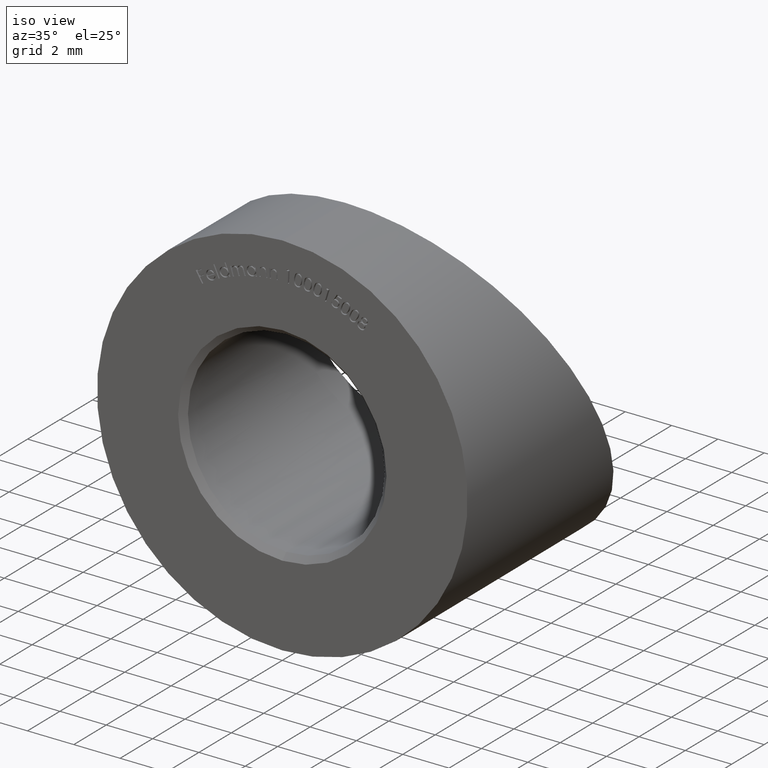
[diagram: clean part render]
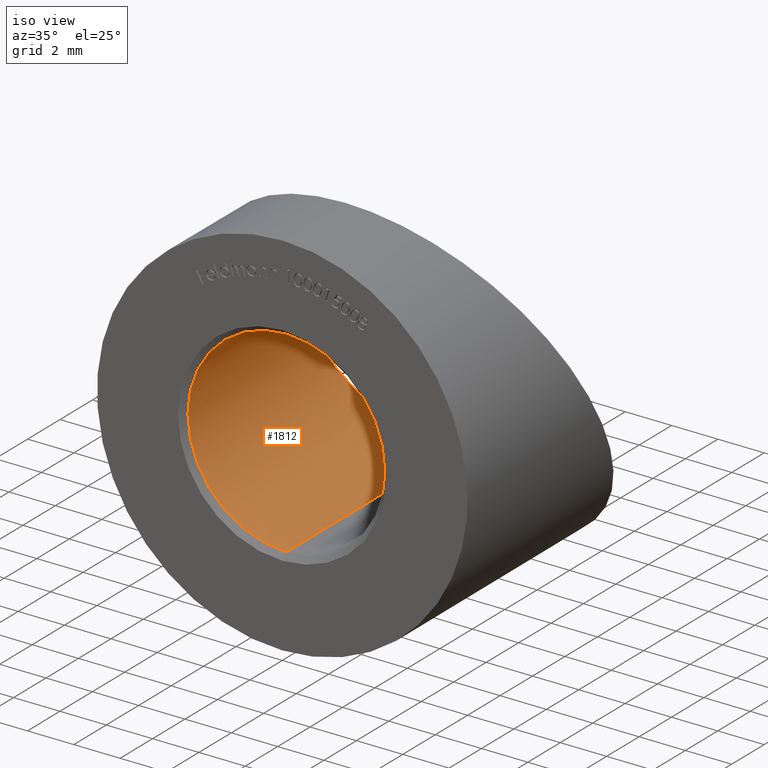
[diagram: same view with one face highlighted and labeled with its STEP entity id]
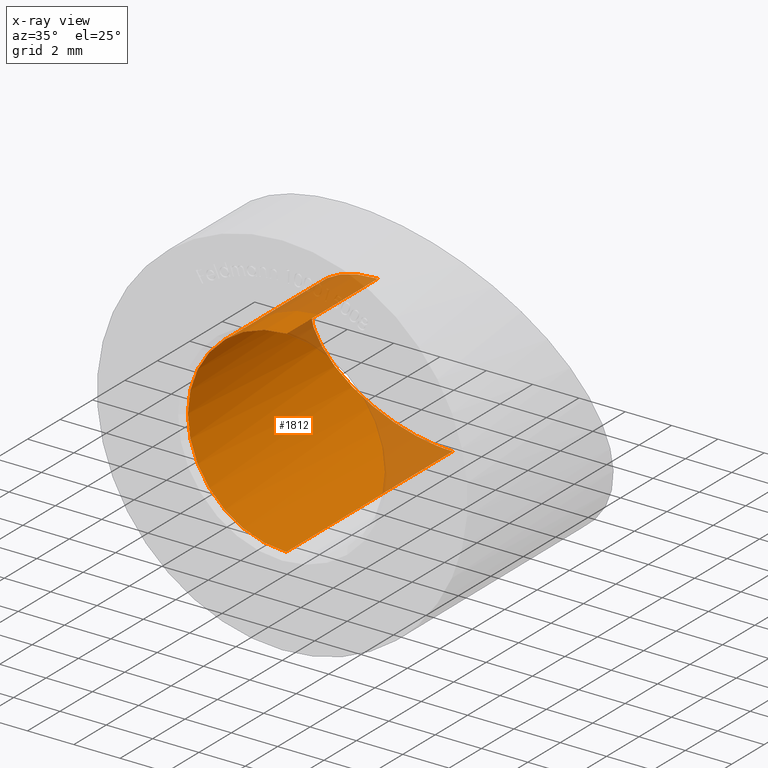
[diagram: x-ray of the same camera — body ghosted, the highlighted face saturated]
A machine part, iso view. The second image highlights one B-rep face of the part: STEP entity #1812.
The next image is the same camera in x-ray: the body ghosted, the highlighted face saturated — about 14% of this face is hidden behind the body in this view.
In plain terms, the highlighted cylindrical surface (partial cylindrical patch) has radius 4.25 mm, axis along (-0, -1, -0).
Its self-contained STEP definition (entity closure, byte-faithful):
#243 = VERTEX_POINT ( 'NONE', #5089 ) ;
#847 = CARTESIAN_POINT ( 'NONE',  ( 0.0000000000000000000, 12.54285714285714600, -4.250000000000000000 ) ) ;
#1313 = EDGE_CURVE ( 'NONE', #12603, #13315, #5124, .T. ) ;
#1478 = CIRCLE ( 'NONE', #3629, 4.250000000000000000 ) ;
#1714 = VECTOR ( 'NONE', #8298, 1000.000000000000000 ) ;
#1812 = ADVANCED_FACE ( 'NONE', ( #3398 ), #12293, .F. ) ;
#2091 = CARTESIAN_POINT ( 'NONE',  ( 5.204748896376250700E-016, 5.892857142857140600, 4.250000000000000000 ) ) ;
#2774 = EDGE_CURVE ( 'NONE', #10571, #243, #5951, .T. ) ;
#3057 = VECTOR ( 'NONE', #3925, 1000.000000000000000 ) ;
#3322 = CARTESIAN_POINT ( 'NONE',  ( 0.0000000000000000000, 10.50714285714285800, -4.250000000000000000 ) ) ;
#3398 = FACE_OUTER_BOUND ( 'NONE', #8975, .T. ) ;
#3447 = CARTESIAN_POINT ( 'NONE',  ( 0.0000000000000000000, 0.2499999999999985000, -4.250000000000000000 ) ) ;
#3522 = ORIENTED_EDGE ( 'NONE', *, *, #2774, .T. ) ;
#3629 = AXIS2_PLACEMENT_3D ( 'NONE', #9776, #7544, #9729 ) ;
#3925 = DIRECTION ( 'NONE',  ( -0.0000000000000000000, -1.000000000000000000, -0.0000000000000000000 ) ) ;
#5089 = CARTESIAN_POINT ( 'NONE',  ( 5.204748896376250700E-016, 0.2499999999999985000, 4.250000000000000000 ) ) ;
#5124 = LINE ( 'NONE', #847, #3057 ) ;
#5597 = ORIENTED_EDGE ( 'NONE', *, *, #9229, .F. ) ;
#5863 = CARTESIAN_POINT ( 'NONE',  ( 0.0000000000000000000, 12.54285714285714600, 0.0000000000000000000 ) ) ;
#5951 = LINE ( 'NONE', #10548, #1714 ) ;
#6418 = CARTESIAN_POINT ( 'NONE',  ( -8.499999999999998200, 10.50714285714285800, -4.250000000000000000 ) ) ;
#6727 = AXIS2_PLACEMENT_3D ( 'NONE', #5863, #12366, #13551 ) ;
#7023 =( BOUNDED_CURVE ( )  B_SPLINE_CURVE ( 3, ( #2091, #8690, #6418, #7471 ),
 .UNSPECIFIED., .F., .F. ) 
 B_SPLINE_CURVE_WITH_KNOTS ( ( 4, 4 ),
 ( 0.0000000000000000000, 3.141592653589793100 ),
 .UNSPECIFIED. ) 
 CURVE ( )  GEOMETRIC_REPRESENTATION_ITEM ( )  RATIONAL_B_SPLINE_CURVE ( ( 1.000000000000000000, 0.3333333333333333700, 0.3333333333333333700, 1.000000000000000000 ) ) 
 REPRESENTATION_ITEM ( '' )  );
#7471 = CARTESIAN_POINT ( 'NONE',  ( 0.0000000000000000000, 10.50714285714285800, -4.250000000000000000 ) ) ;
#7544 = DIRECTION ( 'NONE',  ( 0.0000000000000000000, -1.000000000000000000, 0.0000000000000000000 ) ) ;
#7673 = EDGE_CURVE ( 'NONE', #243, #13315, #1478, .T. ) ;
#7707 = ORIENTED_EDGE ( 'NONE', *, *, #1313, .F. ) ;
#8298 = DIRECTION ( 'NONE',  ( -0.0000000000000000000, -1.000000000000000000, -0.0000000000000000000 ) ) ;
#8690 = CARTESIAN_POINT ( 'NONE',  ( -8.499999999999998200, 5.892857142857139700, 4.250000000000000900 ) ) ;
#8975 = EDGE_LOOP ( 'NONE', ( #5597, #3522, #12059, #7707 ) ) ;
#9229 = EDGE_CURVE ( 'NONE', #10571, #12603, #7023, .T. ) ;
#9729 = DIRECTION ( 'NONE',  ( 0.0000000000000000000, 0.0000000000000000000, 1.000000000000000000 ) ) ;
#9776 = CARTESIAN_POINT ( 'NONE',  ( 0.0000000000000000000, 0.2499999999999985000, 0.0000000000000000000 ) ) ;
#10548 = CARTESIAN_POINT ( 'NONE',  ( 5.204748896376250700E-016, 12.54285714285714600, 4.250000000000000000 ) ) ;
#10571 = VERTEX_POINT ( 'NONE', #11902 ) ;
#11902 = CARTESIAN_POINT ( 'NONE',  ( 5.204748896376250700E-016, 5.892857142857140600, 4.250000000000000000 ) ) ;
#12059 = ORIENTED_EDGE ( 'NONE', *, *, #7673, .T. ) ;
#12293 = CYLINDRICAL_SURFACE ( 'NONE', #6727, 4.250000000000000000 ) ;
#12366 = DIRECTION ( 'NONE',  ( -0.0000000000000000000, -1.000000000000000000, -0.0000000000000000000 ) ) ;
#12603 = VERTEX_POINT ( 'NONE', #3322 ) ;
#13315 = VERTEX_POINT ( 'NONE', #3447 ) ;
#13551 = DIRECTION ( 'NONE',  ( 0.0000000000000000000, 0.0000000000000000000, -1.000000000000000000 ) ) ;